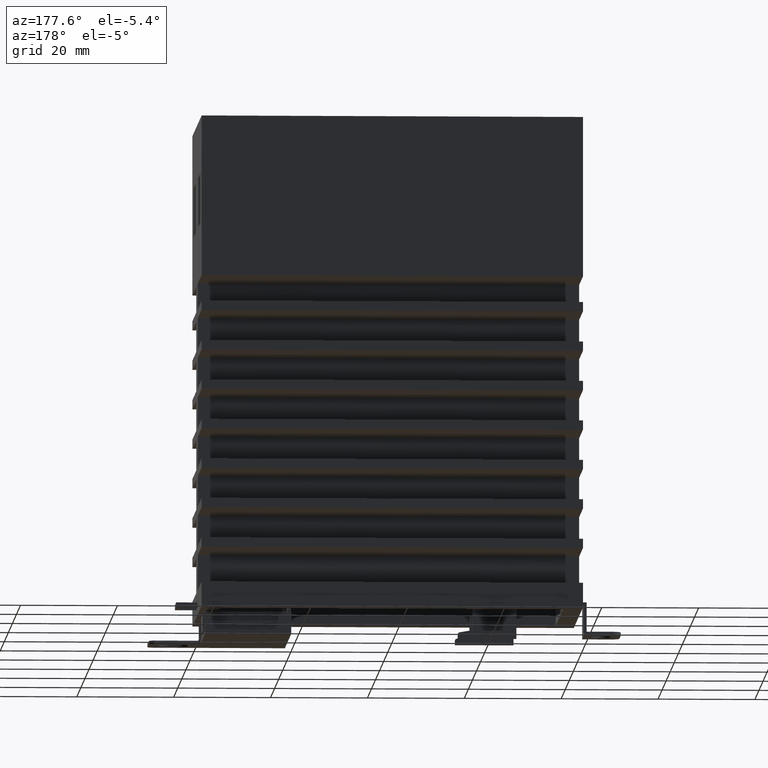
[diagram: clean part render]
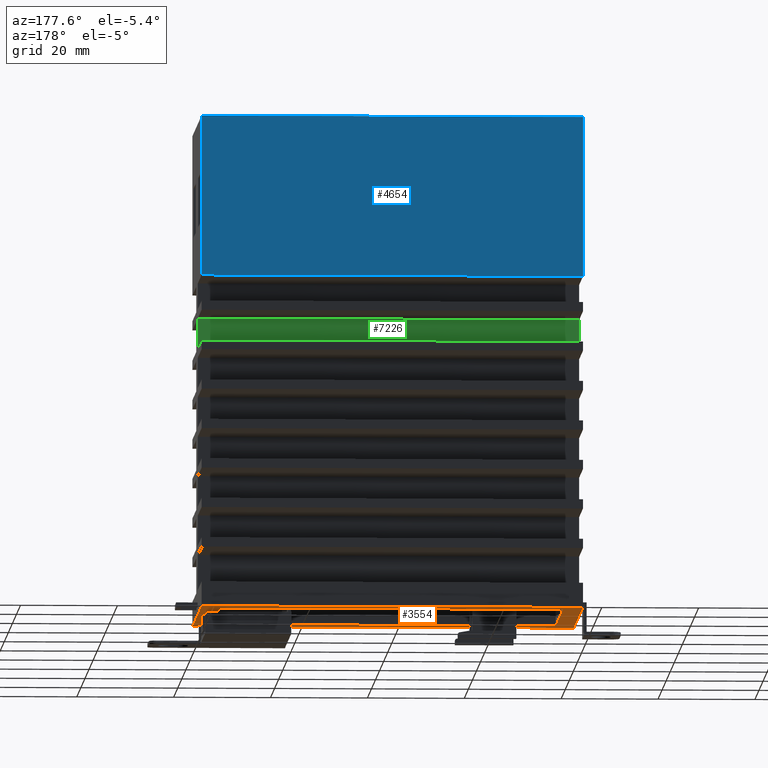
[diagram: same view with three faces highlighted in distinct colors, each labeled with its STEP entity id]
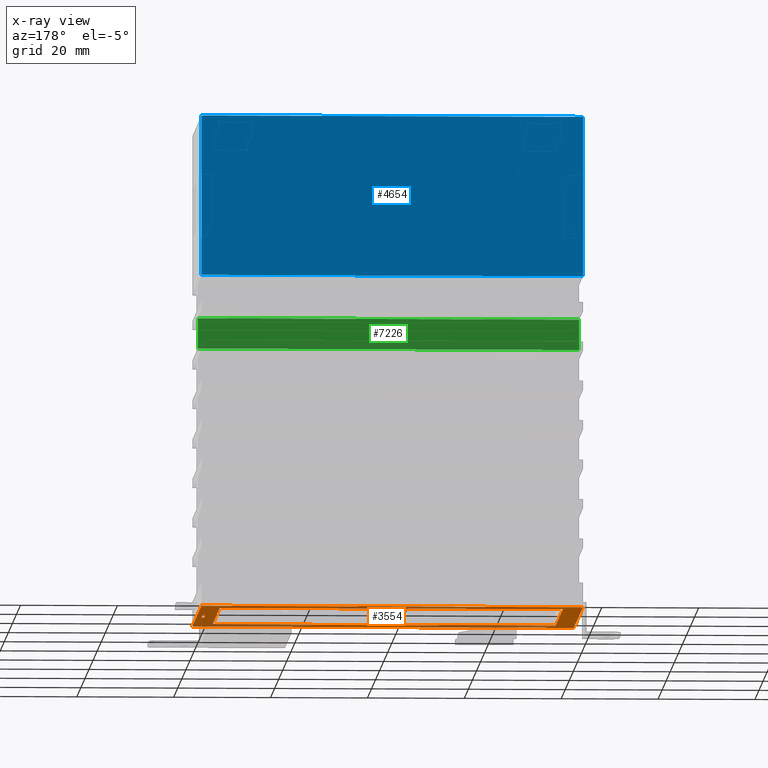
[diagram: x-ray of the same camera — body ghosted, the three highlighted faces saturated]
A machine part, auxiliary view with three faces highlighted in distinct colors.
The next image is the same camera in x-ray (body ghosted, the three faces saturated) — at least one of them is partly hidden behind the body in this view.
Their STEP definitions:

[orange] entity #3554 — the highlighted planar face has unit normal (0, 0, 1).
#84 = DIRECTION ( 'NONE',  ( -2.449212707644750100E-016, -1.000000000000000000, 0.0000000000000000000 ) ) ;
#99 = EDGE_LOOP ( 'NONE', ( #3291, #6083, #6187, #4782 ) ) ;
#146 = DIRECTION ( 'NONE',  ( 1.000000000000000000, 0.0000000000000000000, 0.0000000000000000000 ) ) ;
#243 = EDGE_LOOP ( 'NONE', ( #6344, #1922, #4456, #3805 ) ) ;
#323 = CARTESIAN_POINT ( 'NONE',  ( 0.7487500000000000300, 0.1250000000000000000, 0.2000000000000000100 ) ) ;
#421 = ORIENTED_EDGE ( 'NONE', *, *, #2301, .T. ) ;
#494 = ORIENTED_EDGE ( 'NONE', *, *, #1142, .T. ) ;
#510 = EDGE_CURVE ( 'EDGE263', #4522, #4441, #4589, .T. ) ;
#607 = EDGE_CURVE ( 'EDGE273', #3255, #4669, #3227, .T. ) ;
#610 = DIRECTION ( 'NONE',  ( -1.000000000000000000, 2.449212707644750100E-016, 0.0000000000000000000 ) ) ;
#857 = VECTOR ( 'NONE', #84, 39.37007874015748100 ) ;
#982 = LINE ( 'NONE', #7437, #6114 ) ;
#1027 = AXIS2_PLACEMENT_3D ( 'NONE', #8056, #4123, #146 ) ;
#1075 = LINE ( 'NONE', #4756, #4645 ) ;
#1142 = EDGE_CURVE ( 'EDGE381', #8518, #2664, #4606, .T. ) ;
#1222 = DIRECTION ( 'NONE',  ( 1.000000000000000000, -2.449212707644750100E-016, 0.0000000000000000000 ) ) ;
#1413 = PLANE ( 'NONE',  #1027 ) ;
#1922 = ORIENTED_EDGE ( 'NONE', *, *, #3524, .T. ) ;
#2301 = EDGE_CURVE ( 'EDGE300', #5625, #7803, #6166, .T. ) ;
#2594 = ORIENTED_EDGE ( 'NONE', *, *, #2750, .T. ) ;
#2664 = VERTEX_POINT ( 'NONE', #6383 ) ;
#2750 = EDGE_CURVE ( 'EDGE382', #2664, #5625, #4248, .T. ) ;
#2853 = CARTESIAN_POINT ( 'NONE',  ( 1.510000000000000000, 0.1250000000000000000, 0.2000000000000000100 ) ) ;
#3047 = CARTESIAN_POINT ( 'NONE',  ( 1.485000000000000100, -2.203792703880937300E-016, 0.2000000000000000100 ) ) ;
#3153 = LINE ( 'NONE', #3414, #4764 ) ;
#3227 = LINE ( 'NONE', #3230, #4085 ) ;
#3230 = CARTESIAN_POINT ( 'NONE',  ( -1.753636298673645700E-016, -0.7159999999999999700, 0.2000000000000000100 ) ) ;
#3255 = VERTEX_POINT ( 'NONE', #8198 ) ;
#3291 = ORIENTED_EDGE ( 'NONE', *, *, #3764, .F. ) ;
#3355 = DIRECTION ( 'NONE',  ( 2.449212707644750100E-016, 1.000000000000000000, 0.0000000000000000000 ) ) ;
#3374 = CARTESIAN_POINT ( 'NONE',  ( 1.549999999999999800, -3.796279696849370300E-016, 0.2000000000000000100 ) ) ;
#3414 = CARTESIAN_POINT ( 'NONE',  ( -1.395000000000000000, 3.416651727164433400E-016, 0.2000000000000000100 ) ) ;
#3495 = CARTESIAN_POINT ( 'NONE',  ( 1.395000000000000000, 0.7159999999999999700, 0.2000000000000000100 ) ) ;
#3524 = EDGE_CURVE ( 'EDGE272', #4669, #4469, #1075, .T. ) ;
#3552 = DIRECTION ( 'NONE',  ( 1.000000000000000000, -2.449212707644750100E-016, 0.0000000000000000000 ) ) ;
#3554 = ADVANCED_FACE ( 'FACE127', ( #7710, #4222, #7911 ), #1413, .F. ) ;
#3764 = EDGE_CURVE ( 'EDGE265', #4441, #3899, #982, .T. ) ;
#3805 = ORIENTED_EDGE ( 'NONE', *, *, #7268, .T. ) ;
#3899 = VERTEX_POINT ( 'NONE', #7542 ) ;
#3934 = DIRECTION ( 'NONE',  ( -2.220446049250310400E-016, -1.000000000000000000, 0.0000000000000000000 ) ) ;
#3967 = CARTESIAN_POINT ( 'NONE',  ( 1.510000000000000000, -2.786659791809142200E-016, 0.2000000000000000100 ) ) ;
#4085 = VECTOR ( 'NONE', #3552, 39.37007874015748100 ) ;
#4097 = DIRECTION ( 'NONE',  ( -2.449212707644750100E-016, -1.000000000000000000, 0.0000000000000000000 ) ) ;
#4101 = VERTEX_POINT ( 'NONE', #4555 ) ;
#4123 = DIRECTION ( 'NONE',  ( 0.0000000000000000000, 0.0000000000000000000, 1.000000000000000000 ) ) ;
#4149 = DIRECTION ( 'NONE',  ( -1.000000000000000000, 2.220446049250310400E-016, 0.0000000000000000000 ) ) ;
#4222 = FACE_BOUND ( 'NONE', #243, .T. ) ;
#4228 = CARTESIAN_POINT ( 'NONE',  ( -1.395000000000000000, 0.7159999999999999700, 0.2000000000000000100 ) ) ;
#4248 = LINE ( 'NONE', #7807, #7729 ) ;
#4300 = VECTOR ( 'NONE', #3934, 39.37007874015748100 ) ;
#4315 = DIRECTION ( 'NONE',  ( 1.000000000000000000, -2.220446049250310400E-016, 0.0000000000000000000 ) ) ;
#4441 = VERTEX_POINT ( 'NONE', #4857 ) ;
#4456 = ORIENTED_EDGE ( 'NONE', *, *, #7640, .T. ) ;
#4469 = VERTEX_POINT ( 'NONE', #3495 ) ;
#4522 = VERTEX_POINT ( 'NONE', #2853 ) ;
#4555 = CARTESIAN_POINT ( 'NONE',  ( 1.485000000000000100, 0.1250000000000000000, 0.2000000000000000100 ) ) ;
#4557 = VERTEX_POINT ( 'NONE', #4228 ) ;
#4589 = LINE ( 'NONE', #3967, #4300 ) ;
#4606 = LINE ( 'NONE', #7286, #7959 ) ;
#4645 = VECTOR ( 'NONE', #3355, 39.37007874015748100 ) ;
#4669 = VERTEX_POINT ( 'NONE', #8257 ) ;
#4683 = CARTESIAN_POINT ( 'NONE',  ( 1.549999999999999800, -0.8950000000000000200, 0.2000000000000000100 ) ) ;
#4756 = CARTESIAN_POINT ( 'NONE',  ( 1.395000000000000000, -3.416651727164433400E-016, 0.2000000000000000100 ) ) ;
#4757 = VECTOR ( 'NONE', #610, 39.37007874015748100 ) ;
#4764 = VECTOR ( 'NONE', #4097, 39.37007874015748100 ) ;
#4782 = ORIENTED_EDGE ( 'NONE', *, *, #6348, .F. ) ;
#4857 = CARTESIAN_POINT ( 'NONE',  ( 1.510000000000000000, -0.1250000000000000000, 0.2000000000000000100 ) ) ;
#4976 = LINE ( 'NONE', #7206, #4757 ) ;
#5086 = DIRECTION ( 'NONE',  ( -1.000000000000000000, 2.449212707644750100E-016, 0.0000000000000000000 ) ) ;
#5625 = VERTEX_POINT ( 'NONE', #6916 ) ;
#5739 = VECTOR ( 'NONE', #8322, 39.37007874015748100 ) ;
#6083 = ORIENTED_EDGE ( 'NONE', *, *, #510, .F. ) ;
#6114 = VECTOR ( 'NONE', #4149, 39.37007874015748100 ) ;
#6166 = LINE ( 'NONE', #3374, #857 ) ;
#6187 = ORIENTED_EDGE ( 'NONE', *, *, #6777, .F. ) ;
#6344 = ORIENTED_EDGE ( 'NONE', *, *, #607, .T. ) ;
#6348 = EDGE_CURVE ( 'EDGE258', #3899, #4101, #7461, .T. ) ;
#6383 = CARTESIAN_POINT ( 'NONE',  ( -1.549999999999999800, 0.8950000000000000200, 0.2000000000000000100 ) ) ;
#6501 = CARTESIAN_POINT ( 'NONE',  ( -1.549999999999999800, -0.8950000000000000200, 0.2000000000000000100 ) ) ;
#6638 = LINE ( 'NONE', #7008, #8323 ) ;
#6777 = EDGE_CURVE ( 'EDGE261', #4101, #4522, #8431, .T. ) ;
#6848 = EDGE_CURVE ( 'EDGE380', #7803, #8518, #6638, .T. ) ;
#6916 = CARTESIAN_POINT ( 'NONE',  ( 1.549999999999999800, 0.8950000000000000200, 0.2000000000000000100 ) ) ;
#7008 = CARTESIAN_POINT ( 'NONE',  ( -2.192045373342055100E-016, -0.8950000000000000200, 0.2000000000000000100 ) ) ;
#7206 = CARTESIAN_POINT ( 'NONE',  ( 1.753636298673645700E-016, 0.7159999999999999700, 0.2000000000000000100 ) ) ;
#7268 = EDGE_CURVE ( 'EDGE268', #4557, #3255, #3153, .T. ) ;
#7286 = CARTESIAN_POINT ( 'NONE',  ( -1.549999999999999800, 3.796279696849370300E-016, 0.2000000000000000100 ) ) ;
#7348 = DIRECTION ( 'NONE',  ( 2.449212707644750100E-016, 1.000000000000000000, 0.0000000000000000000 ) ) ;
#7437 = CARTESIAN_POINT ( 'NONE',  ( 0.7487500000000000300, -0.1250000000000000000, 0.2000000000000000100 ) ) ;
#7461 = LINE ( 'NONE', #3047, #5739 ) ;
#7542 = CARTESIAN_POINT ( 'NONE',  ( 1.485000000000000100, -0.1250000000000000000, 0.2000000000000000100 ) ) ;
#7640 = EDGE_CURVE ( 'EDGE270', #4469, #4557, #4976, .T. ) ;
#7710 = FACE_OUTER_BOUND ( 'NONE', #8052, .T. ) ;
#7729 = VECTOR ( 'NONE', #1222, 39.37007874015748100 ) ;
#7803 = VERTEX_POINT ( 'NONE', #4683 ) ;
#7807 = CARTESIAN_POINT ( 'NONE',  ( 2.192045373342055100E-016, 0.8950000000000000200, 0.2000000000000000100 ) ) ;
#7911 = FACE_BOUND ( 'NONE', #99, .T. ) ;
#7959 = VECTOR ( 'NONE', #7348, 39.37007874015748100 ) ;
#8052 = EDGE_LOOP ( 'NONE', ( #421, #8329, #494, #2594 ) ) ;
#8056 = CARTESIAN_POINT ( 'NONE',  ( 0.0000000000000000000, 0.0000000000000000000, 0.2000000000000000100 ) ) ;
#8198 = CARTESIAN_POINT ( 'NONE',  ( -1.395000000000000000, -0.7159999999999999700, 0.2000000000000000100 ) ) ;
#8230 = VECTOR ( 'NONE', #4315, 39.37007874015748100 ) ;
#8257 = CARTESIAN_POINT ( 'NONE',  ( 1.395000000000000000, -0.7159999999999999700, 0.2000000000000000100 ) ) ;
#8322 = DIRECTION ( 'NONE',  ( 2.220446049250310400E-016, 1.000000000000000000, 0.0000000000000000000 ) ) ;
#8323 = VECTOR ( 'NONE', #5086, 39.37007874015748100 ) ;
#8329 = ORIENTED_EDGE ( 'NONE', *, *, #6848, .T. ) ;
#8431 = LINE ( 'NONE', #323, #8230 ) ;
#8518 = VERTEX_POINT ( 'NONE', #6501 ) ;

[blue] entity #4654 — the highlighted planar face has unit normal (-0, -1, 0).
#131 = CARTESIAN_POINT ( 'NONE',  ( -1.549999999999999800, 0.8950000000000000200, 4.200000000000000200 ) ) ;
#966 = VECTOR ( 'NONE', #3526, 39.37007874015748100 ) ;
#1040 = DIRECTION ( 'NONE',  ( -2.449212707644750100E-016, -1.000000000000000000, 0.0000000000000000000 ) ) ;
#1046 = EDGE_CURVE ( 'EDGE333', #6802, #7822, #1970, .T. ) ;
#1303 = ORIENTED_EDGE ( 'NONE', *, *, #3592, .F. ) ;
#1476 = CARTESIAN_POINT ( 'NONE',  ( 2.192045373342055100E-016, 0.8950000000000000200, 2.900000000000000400 ) ) ;
#1601 = VECTOR ( 'NONE', #6158, 39.37007874015748100 ) ;
#1602 = VERTEX_POINT ( 'NONE', #8461 ) ;
#1723 = LINE ( 'NONE', #3182, #2445 ) ;
#1853 = EDGE_LOOP ( 'NONE', ( #6526, #1303, #3681, #2985 ) ) ;
#1970 = LINE ( 'NONE', #7791, #4917 ) ;
#2303 = CARTESIAN_POINT ( 'NONE',  ( 1.549999999999999800, 0.8950000000000000200, 4.200000000000000200 ) ) ;
#2389 = FACE_OUTER_BOUND ( 'NONE', #1853, .T. ) ;
#2445 = VECTOR ( 'NONE', #7149, 39.37007874015748100 ) ;
#2749 = EDGE_CURVE ( 'EDGE447', #6687, #1602, #1723, .T. ) ;
#2985 = ORIENTED_EDGE ( 'NONE', *, *, #4517, .F. ) ;
#3182 = CARTESIAN_POINT ( 'NONE',  ( -1.549999999999999800, 0.8950000000000000200, 3.649999999999999900 ) ) ;
#3373 = CARTESIAN_POINT ( 'NONE',  ( 1.549999999999999800, 0.8950000000000000200, 2.900000000000000400 ) ) ;
#3526 = DIRECTION ( 'NONE',  ( -1.000000000000000000, 2.449212707644750100E-016, 0.0000000000000000000 ) ) ;
#3592 = EDGE_CURVE ( 'EDGE446', #1602, #7822, #5188, .T. ) ;
#3681 = ORIENTED_EDGE ( 'NONE', *, *, #2749, .F. ) ;
#3739 = AXIS2_PLACEMENT_3D ( 'NONE', #5065, #1040, #5723 ) ;
#4517 = EDGE_CURVE ( 'EDGE448', #6802, #6687, #7984, .T. ) ;
#4654 = ADVANCED_FACE ( 'FACE160', ( #2389 ), #6351, .F. ) ;
#4917 = VECTOR ( 'NONE', #7711, 39.37007874015748100 ) ;
#5065 = CARTESIAN_POINT ( 'NONE',  ( 2.192045373342055100E-016, 0.8950000000000000200, 3.000000000000000400 ) ) ;
#5188 = LINE ( 'NONE', #1476, #1601 ) ;
#5723 = DIRECTION ( 'NONE',  ( 1.000000000000000000, -2.449212707644750100E-016, 0.0000000000000000000 ) ) ;
#6158 = DIRECTION ( 'NONE',  ( 1.000000000000000000, -2.449212707644750100E-016, 0.0000000000000000000 ) ) ;
#6351 = PLANE ( 'NONE',  #3739 ) ;
#6526 = ORIENTED_EDGE ( 'NONE', *, *, #1046, .T. ) ;
#6687 = VERTEX_POINT ( 'NONE', #131 ) ;
#6802 = VERTEX_POINT ( 'NONE', #2303 ) ;
#7149 = DIRECTION ( 'NONE',  ( 0.0000000000000000000, 0.0000000000000000000, -1.000000000000000000 ) ) ;
#7504 = CARTESIAN_POINT ( 'NONE',  ( 2.192045373342055100E-016, 0.8950000000000000200, 4.200000000000000200 ) ) ;
#7711 = DIRECTION ( 'NONE',  ( 0.0000000000000000000, 0.0000000000000000000, -1.000000000000000000 ) ) ;
#7791 = CARTESIAN_POINT ( 'NONE',  ( 1.549999999999999800, 0.8950000000000000200, 3.649999999999999900 ) ) ;
#7822 = VERTEX_POINT ( 'NONE', #3373 ) ;
#7984 = LINE ( 'NONE', #7504, #966 ) ;
#8461 = CARTESIAN_POINT ( 'NONE',  ( -1.549999999999999800, 0.8950000000000000200, 2.900000000000000400 ) ) ;

[green] entity #7226 — the highlighted planar face has unit normal (-0, -1, 0).
#60 = CARTESIAN_POINT ( 'NONE',  ( -1.549999999999999800, 0.1500000000000004100, 2.368749999999999900 ) ) ;
#122 = DIRECTION ( 'NONE',  ( -1.000000000000000000, 2.449212707644750100E-016, -1.015928045664270200E-032 ) ) ;
#349 = CARTESIAN_POINT ( 'NONE',  ( -1.549999999999999800, 0.1500000000000004100, 1.649999999999999900 ) ) ;
#411 = LINE ( 'NONE', #7410, #5547 ) ;
#836 = VERTEX_POINT ( 'NONE', #60 ) ;
#847 = CARTESIAN_POINT ( 'NONE',  ( -1.549999999999999800, 0.1500000000000004100, 2.615625000000000500 ) ) ;
#1020 = DIRECTION ( 'NONE',  ( 0.0000000000000000000, 0.0000000000000000000, -1.000000000000000000 ) ) ;
#1244 = EDGE_LOOP ( 'NONE', ( #4019, #3290, #2859, #5654 ) ) ;
#2189 = AXIS2_PLACEMENT_3D ( 'NONE', #3380, #8000, #4066 ) ;
#2429 = EDGE_CURVE ( 'EDGE433', #836, #7625, #411, .T. ) ;
#2430 = FACE_OUTER_BOUND ( 'NONE', #1244, .T. ) ;
#2560 = CARTESIAN_POINT ( 'NONE',  ( 1.549999999999999800, 0.1499999999999996100, 2.368749999999999900 ) ) ;
#2629 = LINE ( 'NONE', #8023, #6007 ) ;
#2747 = LINE ( 'NONE', #3843, #6135 ) ;
#2753 = DIRECTION ( 'NONE',  ( 1.000000000000000000, -2.449212707644750100E-016, 1.015928045664270200E-032 ) ) ;
#2859 = ORIENTED_EDGE ( 'NONE', *, *, #3545, .F. ) ;
#3013 = LINE ( 'NONE', #349, #4617 ) ;
#3290 = ORIENTED_EDGE ( 'NONE', *, *, #8297, .F. ) ;
#3380 = CARTESIAN_POINT ( 'NONE',  ( 3.673819061467129600E-017, 0.1499999999999999900, 1.649999999999999900 ) ) ;
#3545 = EDGE_CURVE ( 'EDGE436', #8024, #6702, #2629, .T. ) ;
#3843 = CARTESIAN_POINT ( 'NONE',  ( 1.549999999999999800, 0.1499999999999996100, 1.649999999999999900 ) ) ;
#4019 = ORIENTED_EDGE ( 'NONE', *, *, #2429, .F. ) ;
#4066 = DIRECTION ( 'NONE',  ( 1.000000000000000000, -2.449212707644750100E-016, 0.0000000000000000000 ) ) ;
#4617 = VECTOR ( 'NONE', #1020, 39.37007874015748100 ) ;
#4732 = PLANE ( 'NONE',  #2189 ) ;
#5547 = VECTOR ( 'NONE', #2753, 39.37007874015748100 ) ;
#5654 = ORIENTED_EDGE ( 'NONE', *, *, #6975, .T. ) ;
#5896 = DIRECTION ( 'NONE',  ( 0.0000000000000000000, 0.0000000000000000000, -1.000000000000000000 ) ) ;
#6007 = VECTOR ( 'NONE', #122, 39.37007874015748100 ) ;
#6135 = VECTOR ( 'NONE', #5896, 39.37007874015748100 ) ;
#6702 = VERTEX_POINT ( 'NONE', #847 ) ;
#6780 = CARTESIAN_POINT ( 'NONE',  ( 1.549999999999999800, 0.1499999999999996100, 2.615625000000000500 ) ) ;
#6975 = EDGE_CURVE ( 'EDGE327', #8024, #7625, #2747, .T. ) ;
#7226 = ADVANCED_FACE ( 'FACE154', ( #2430 ), #4732, .F. ) ;
#7410 = CARTESIAN_POINT ( 'NONE',  ( 3.673819061467125900E-017, 0.1499999999999999900, 2.368749999999999900 ) ) ;
#7625 = VERTEX_POINT ( 'NONE', #2560 ) ;
#8000 = DIRECTION ( 'NONE',  ( -2.449212707644750100E-016, -1.000000000000000000, 0.0000000000000000000 ) ) ;
#8023 = CARTESIAN_POINT ( 'NONE',  ( 3.673819061467125900E-017, 0.1499999999999999900, 2.615625000000000500 ) ) ;
#8024 = VERTEX_POINT ( 'NONE', #6780 ) ;
#8297 = EDGE_CURVE ( 'EDGE435', #6702, #836, #3013, .T. ) ;